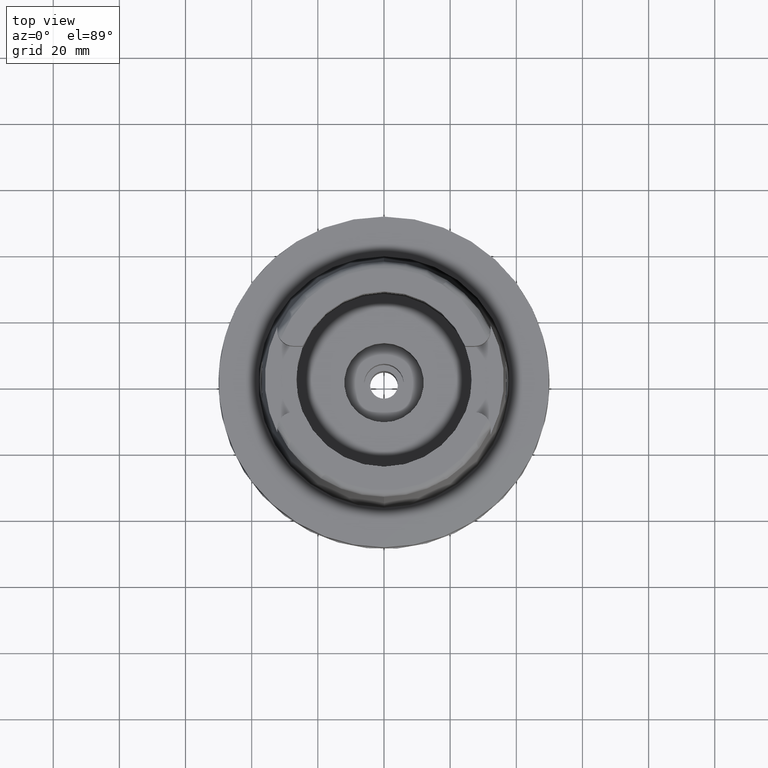
[diagram: clean part render]
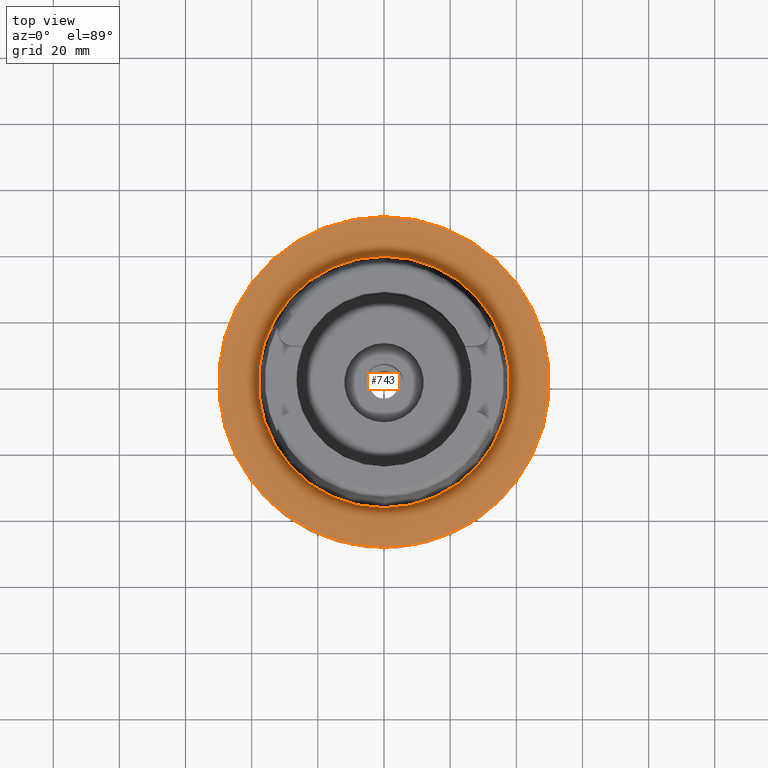
[diagram: same view with one face highlighted and labeled with its STEP entity id]
A machine part, top view. The second image highlights one B-rep face of the part: STEP entity #743.
In plain terms, the highlighted planar face has unit normal (0, 0, 1).
Its self-contained STEP definition (entity closure, byte-faithful):
#32 = DIRECTION ( 'NONE',  ( 1.000000000000000000, 0.0000000000000000000, 0.0000000000000000000 ) ) ;
#90 = FACE_OUTER_BOUND ( 'NONE', #696, .T. ) ;
#122 = DIRECTION ( 'NONE',  ( 0.0000000000000000000, 1.000000000000000000, 0.0000000000000000000 ) ) ;
#348 = VERTEX_POINT ( 'NONE', #1242 ) ;
#437 = AXIS2_PLACEMENT_3D ( 'NONE', #3938, #5237, #122 ) ;
#474 = ORIENTED_EDGE ( 'NONE', *, *, #3298, .F. ) ;
#477 = EDGE_LOOP ( 'NONE', ( #474, #1644 ) ) ;
#517 = DIRECTION ( 'NONE',  ( 0.0000000000000000000, 0.0000000000000000000, -1.000000000000000000 ) ) ;
#542 = CARTESIAN_POINT ( 'NONE',  ( 0.0000000000000000000, 0.0000000000000000000, 1.023181539494999863E-12 ) ) ;
#696 = EDGE_LOOP ( 'NONE', ( #3605, #3924 ) ) ;
#743 = ADVANCED_FACE ( 'NONE', ( #90, #3125 ), #4322, .T. ) ;
#849 = AXIS2_PLACEMENT_3D ( 'NONE', #2639, #517, #981 ) ;
#900 = CARTESIAN_POINT ( 'NONE',  ( 0.0000000000000000000, -38.00001658251999714, 6.892264536873000076E-13 ) ) ;
#981 = DIRECTION ( 'NONE',  ( 0.0000000000000000000, -1.000000000000000000, 0.0000000000000000000 ) ) ;
#1142 = DIRECTION ( 'NONE',  ( 0.0000000000000000000, -1.000000000000000000, 0.0000000000000000000 ) ) ;
#1242 = CARTESIAN_POINT ( 'NONE',  ( 0.0000000000000000000, 38.00001658251999714, 1.023181539494999863E-12 ) ) ;
#1644 = ORIENTED_EDGE ( 'NONE', *, *, #2730, .F. ) ;
#1651 = VERTEX_POINT ( 'NONE', #2951 ) ;
#1857 = VERTEX_POINT ( 'NONE', #900 ) ;
#1945 = CARTESIAN_POINT ( 'NONE',  ( 0.0000000000000000000, 50.00000000000000000, 8.052817671947998165E-14 ) ) ;
#1994 = EDGE_CURVE ( 'NONE', #1651, #2188, #5533, .T. ) ;
#2058 = CIRCLE ( 'NONE', #2859, 38.00001658251999714 ) ;
#2188 = VERTEX_POINT ( 'NONE', #1945 ) ;
#2229 = DIRECTION ( 'NONE',  ( 0.0000000000000000000, 1.000000000000000000, 0.0000000000000000000 ) ) ;
#2251 = CARTESIAN_POINT ( 'NONE',  ( 0.0000000000000000000, 0.0000000000000000000, 1.421085471519999843E-14 ) ) ;
#2275 = DIRECTION ( 'NONE',  ( 0.0000000000000000000, 0.0000000000000000000, 1.000000000000000000 ) ) ;
#2418 = CARTESIAN_POINT ( 'NONE',  ( 0.0000000000000000000, 0.0000000000000000000, 1.023181539494999863E-12 ) ) ;
#2639 = CARTESIAN_POINT ( 'NONE',  ( 0.0000000000000000000, 0.0000000000000000000, 1.136868377215999875E-13 ) ) ;
#2730 = EDGE_CURVE ( 'NONE', #1857, #348, #3091, .T. ) ;
#2859 = AXIS2_PLACEMENT_3D ( 'NONE', #542, #4813, #2229 ) ;
#2951 = CARTESIAN_POINT ( 'NONE',  ( 0.0000000000000000000, -50.00000000000000000, 1.136868377215999875E-13 ) ) ;
#3091 = CIRCLE ( 'NONE', #4613, 38.00001658251999714 ) ;
#3125 = FACE_BOUND ( 'NONE', #477, .T. ) ;
#3298 = EDGE_CURVE ( 'NONE', #348, #1857, #2058, .T. ) ;
#3334 = EDGE_CURVE ( 'NONE', #2188, #1651, #4838, .T. ) ;
#3605 = ORIENTED_EDGE ( 'NONE', *, *, #3334, .F. ) ;
#3924 = ORIENTED_EDGE ( 'NONE', *, *, #1994, .F. ) ;
#3938 = CARTESIAN_POINT ( 'NONE',  ( 0.0000000000000000000, 0.0000000000000000000, 1.136868377215999875E-13 ) ) ;
#4322 = PLANE ( 'NONE',  #4619 ) ;
#4613 = AXIS2_PLACEMENT_3D ( 'NONE', #2418, #4915, #1142 ) ;
#4619 = AXIS2_PLACEMENT_3D ( 'NONE', #2251, #2275, #32 ) ;
#4813 = DIRECTION ( 'NONE',  ( 0.0000000000000000000, 0.0000000000000000000, 1.000000000000000000 ) ) ;
#4838 = CIRCLE ( 'NONE', #437, 50.00000000000000000 ) ;
#4915 = DIRECTION ( 'NONE',  ( 0.0000000000000000000, 0.0000000000000000000, 1.000000000000000000 ) ) ;
#5237 = DIRECTION ( 'NONE',  ( 0.0000000000000000000, 0.0000000000000000000, -1.000000000000000000 ) ) ;
#5533 = CIRCLE ( 'NONE', #849, 50.00000000000000000 ) ;